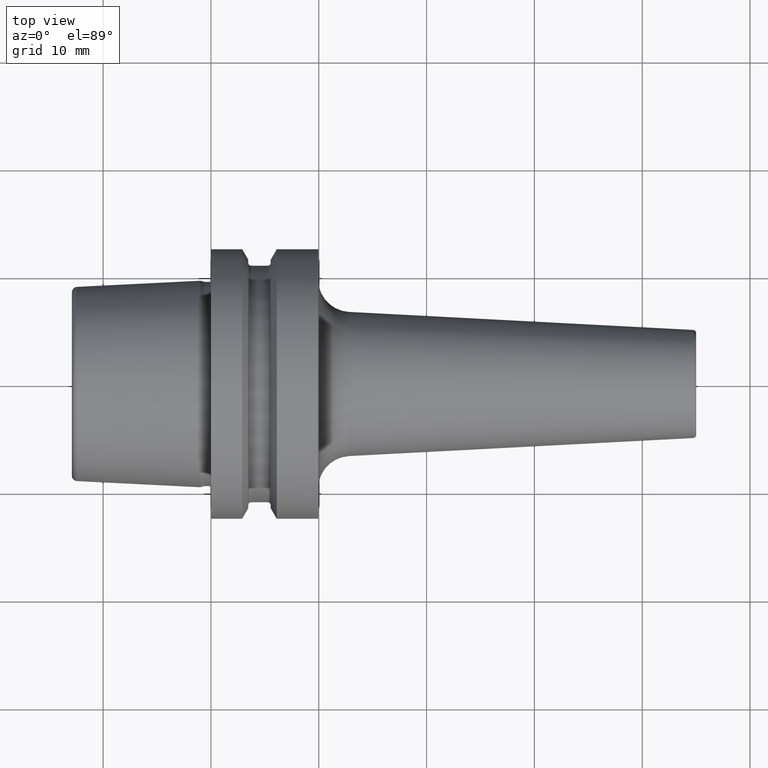
[diagram: clean part render]
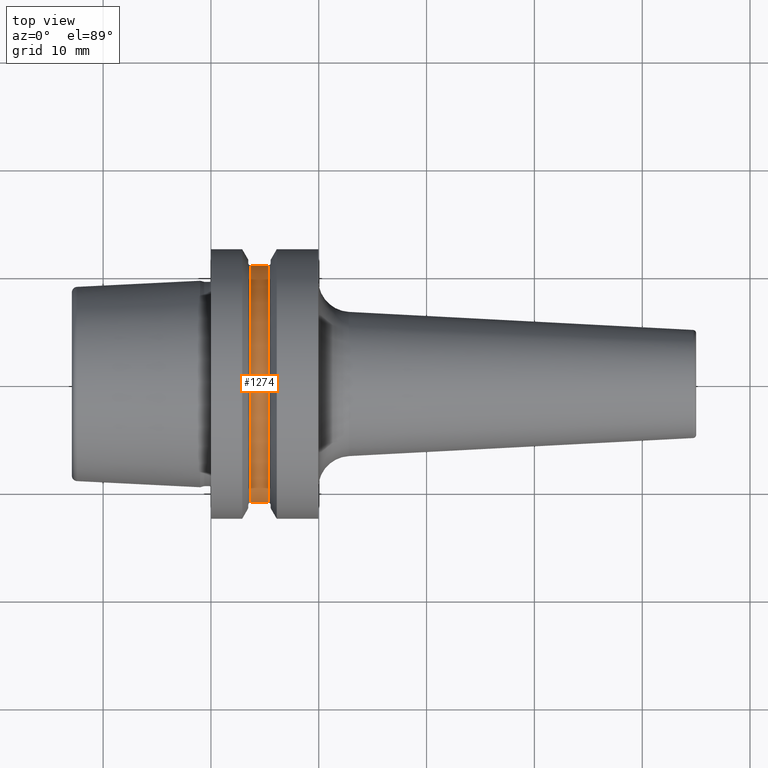
[diagram: same view with one face highlighted and labeled with its STEP entity id]
A machine part, top view. The second image highlights one B-rep face of the part: STEP entity #1274.
In plain terms, the highlighted cylindrical surface (partial cylindrical patch) has radius 10.975 mm, axis along (1, 0, 0).
Its self-contained STEP definition (entity closure, byte-faithful):
#372=CARTESIAN_POINT('',(5.2875E0,0.E0,0.E0));
#373=DIRECTION('',(1.E0,0.E0,0.E0));
#374=DIRECTION('',(0.E0,1.E0,0.E0));
#375=AXIS2_PLACEMENT_3D('',#372,#373,#374);
#377=CARTESIAN_POINT('',(3.7125E0,0.E0,0.E0));
#378=DIRECTION('',(1.E0,0.E0,0.E0));
#379=DIRECTION('',(0.E0,1.E0,0.E0));
#380=AXIS2_PLACEMENT_3D('',#377,#378,#379);
#382=DIRECTION('',(1.E0,0.E0,0.E0));
#383=VECTOR('',#382,1.575E0);
#384=CARTESIAN_POINT('',(3.7125E0,-1.0975E1,0.E0));
#385=LINE('',#384,#383);
#386=DIRECTION('',(-1.E0,0.E0,0.E0));
#387=VECTOR('',#386,1.575E0);
#388=CARTESIAN_POINT('',(5.2875E0,1.0975E1,0.E0));
#389=LINE('',#388,#387);
#601=CARTESIAN_POINT('',(3.7125E0,1.0975E1,0.E0));
#603=VERTEX_POINT('',#601);
#604=CARTESIAN_POINT('',(5.2875E0,1.0975E1,0.E0));
#606=VERTEX_POINT('',#604);
#609=CARTESIAN_POINT('',(3.7125E0,-1.0975E1,0.E0));
#611=VERTEX_POINT('',#609);
#612=CARTESIAN_POINT('',(5.2875E0,-1.0975E1,0.E0));
#614=VERTEX_POINT('',#612);
#1260=CARTESIAN_POINT('',(2.737638303299E0,0.E0,0.E0));
#1261=DIRECTION('',(1.E0,0.E0,0.E0));
#1262=DIRECTION('',(0.E0,-1.E0,0.E0));
#1263=AXIS2_PLACEMENT_3D('',#1260,#1261,#1262);
#1264=CYLINDRICAL_SURFACE('',#1263,1.0975E1);
#1266=ORIENTED_EDGE('',*,*,#1265,.F.);
#1267=ORIENTED_EDGE('',*,*,#1255,.T.);
#1269=ORIENTED_EDGE('',*,*,#1268,.F.);
#1271=ORIENTED_EDGE('',*,*,#1270,.F.);
#1272=EDGE_LOOP('',(#1266,#1267,#1269,#1271));
#1273=FACE_OUTER_BOUND('',#1272,.F.);
#1274=ADVANCED_FACE('',(#1273),#1264,.T.);
#376=CIRCLE('',#375,1.0975E1);
#381=CIRCLE('',#380,1.0975E1);
#1255=EDGE_CURVE('',#606,#614,#376,.T.);
#1265=EDGE_CURVE('',#606,#603,#389,.T.);
#1268=EDGE_CURVE('',#611,#614,#385,.T.);
#1270=EDGE_CURVE('',#603,#611,#381,.T.);